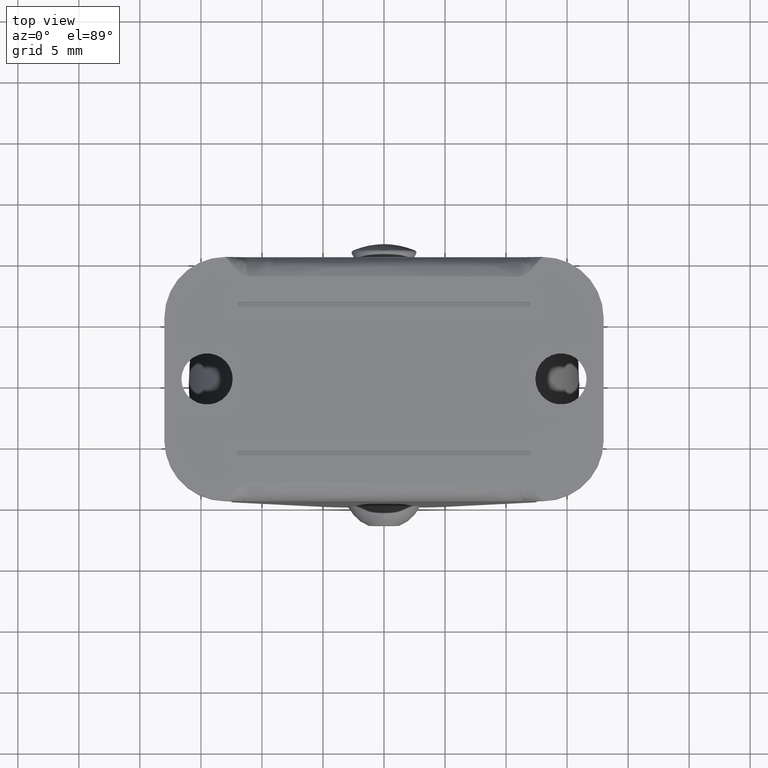
[diagram: clean part render]
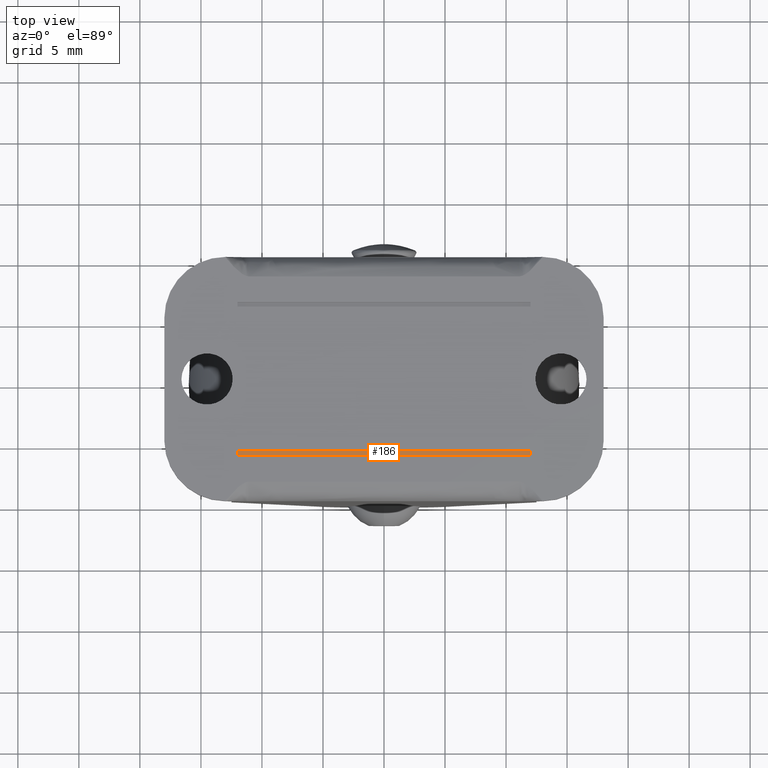
[diagram: same view with one face highlighted and labeled with its STEP entity id]
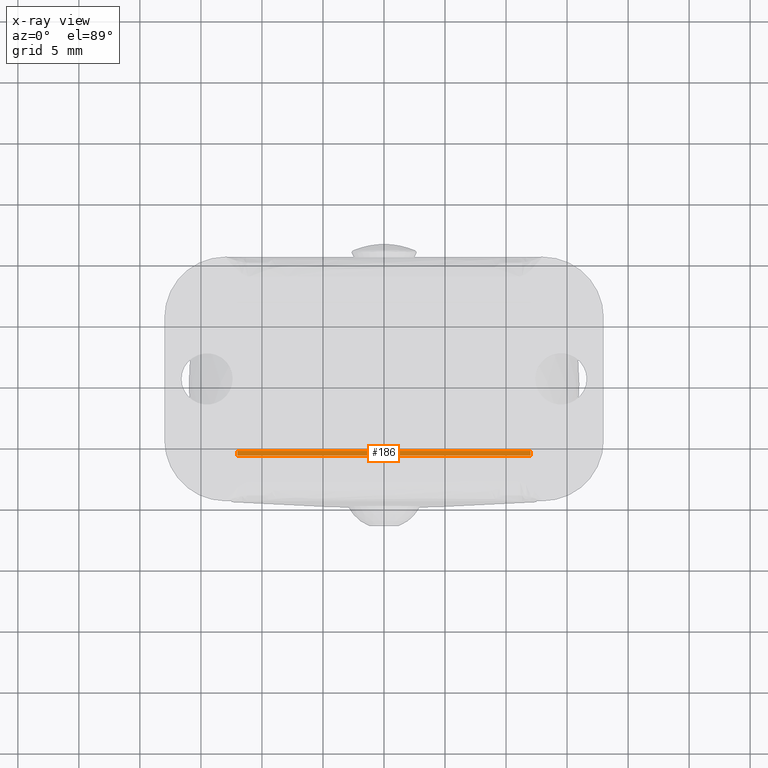
[diagram: x-ray of the same camera — body ghosted, the highlighted face saturated]
A machine part, top view. The second image highlights one B-rep face of the part: STEP entity #186.
The next image is the same camera in x-ray: the body ghosted, the highlighted face saturated — about 0% of this face is hidden behind the body in this view.
In plain terms, the highlighted planar face has unit normal (0, 0, -1).
Its self-contained STEP definition (entity closure, byte-faithful):
#186=ADVANCED_FACE('',(#619),#618,.F.);
#618=PLANE('',#1579);
#619=FACE_OUTER_BOUND('',#1580,.T.);
#1576=CARTESIAN_POINT('',(-1.44000000000E+01,-5.86000230000E+00,2.57000000000E+01));
#1577=DIRECTION('',(0.00000000000E+00,0.00000000000E+00,-1.00000000000E+00));
#1578=DIRECTION('',(1.00000000000E+00,0.00000000000E+00,0.00000000000E+00));
#1579=AXIS2_PLACEMENT_3D('',#1576,#1577,#1578);
#1580=EDGE_LOOP('',(#2164,#2165,#2166,#2167));
#2164=ORIENTED_EDGE('',*,*,#2480,.T.);
#2165=ORIENTED_EDGE('',*,*,#2481,.T.);
#2166=ORIENTED_EDGE('',*,*,#2482,.T.);
#2167=ORIENTED_EDGE('',*,*,#2483,.T.);
#2480=EDGE_CURVE('',#3318,#3319,#3320,.T.);
#2481=EDGE_CURVE('',#3319,#3326,#3327,.T.);
#2482=EDGE_CURVE('',#3326,#3333,#3334,.T.);
#2483=EDGE_CURVE('',#3333,#3318,#3340,.T.);
#3318=VERTEX_POINT('',#4319);
#3319=VERTEX_POINT('',#4320);
#3320=LINE('',#4321,#4322);
#3326=VERTEX_POINT('',#4324);
#3327=LINE('',#4325,#4326);
#3333=VERTEX_POINT('',#4328);
#3334=LINE('',#4329,#4330);
#3340=LINE('',#4332,#4333);
#4319=CARTESIAN_POINT('',(1.20000000000E+01,-6.29999900000E+00,2.57000000000E+01));
#4320=CARTESIAN_POINT('',(1.20000000000E+01,-5.90000200000E+00,2.57000000000E+01));
#4321=CARTESIAN_POINT('',(1.20000000000E+01,-6.29999900000E+00,2.57000000000E+01));
#4322=VECTOR('',#4323,3.99997000000E-01);
#4323=DIRECTION('',(0.00000000000E+00,1.00000000000E+00,0.00000000000E+00));
#4324=CARTESIAN_POINT('',(-1.20000000000E+01,-5.90000200000E+00,2.57000000000E+01));
#4325=CARTESIAN_POINT('',(1.20000000000E+01,-5.90000200000E+00,2.57000000000E+01));
#4326=VECTOR('',#4327,2.40000000000E+01);
#4327=DIRECTION('',(-1.00000000000E+00,0.00000000000E+00,0.00000000000E+00));
#4328=CARTESIAN_POINT('',(-1.20000000000E+01,-6.29999900000E+00,2.57000000000E+01));
#4329=CARTESIAN_POINT('',(-1.20000000000E+01,-5.90000200000E+00,2.57000000000E+01));
#4330=VECTOR('',#4331,3.99997000000E-01);
#4331=DIRECTION('',(0.00000000000E+00,-1.00000000000E+00,0.00000000000E+00));
#4332=CARTESIAN_POINT('',(-1.20000000000E+01,-6.29999900000E+00,2.57000000000E+01));
#4333=VECTOR('',#4334,2.40000000000E+01);
#4334=DIRECTION('',(1.00000000000E+00,0.00000000000E+00,0.00000000000E+00));